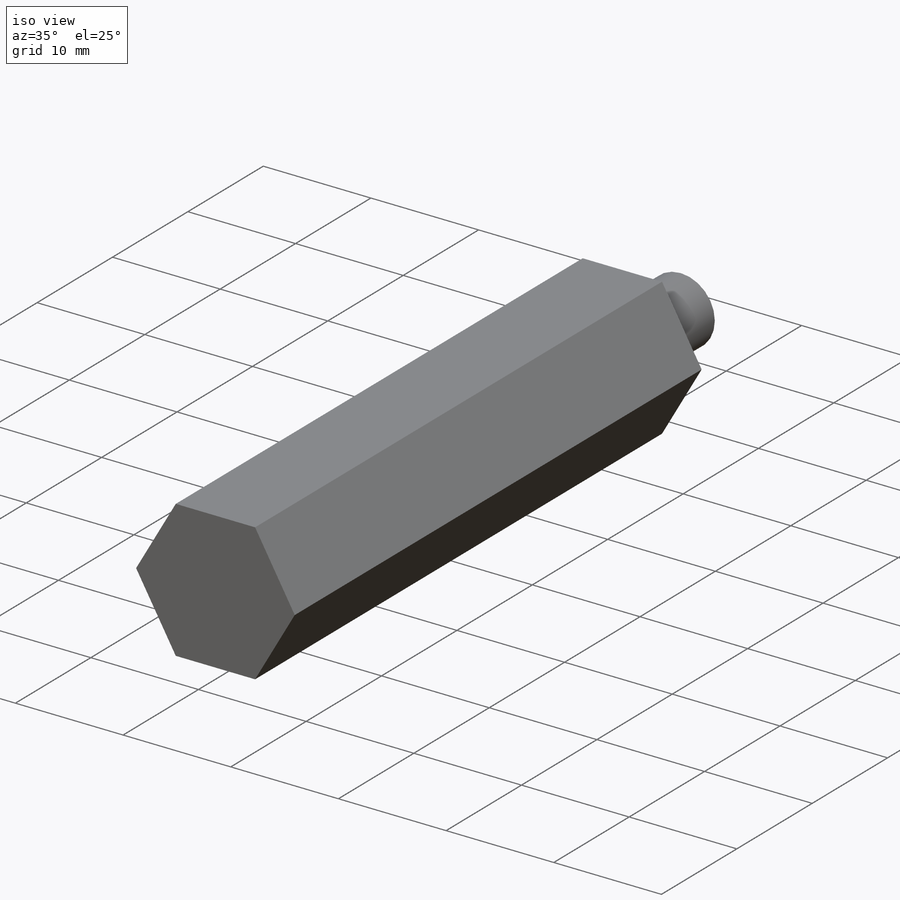
[diagram: iso view]
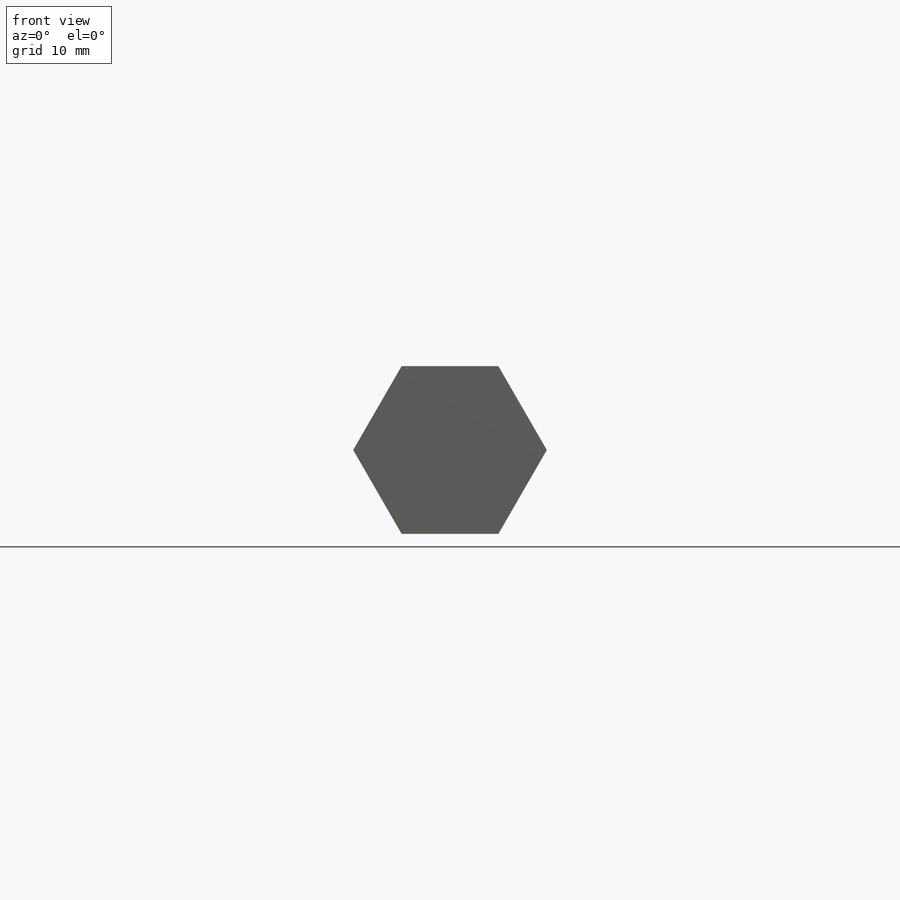
[diagram: front view]
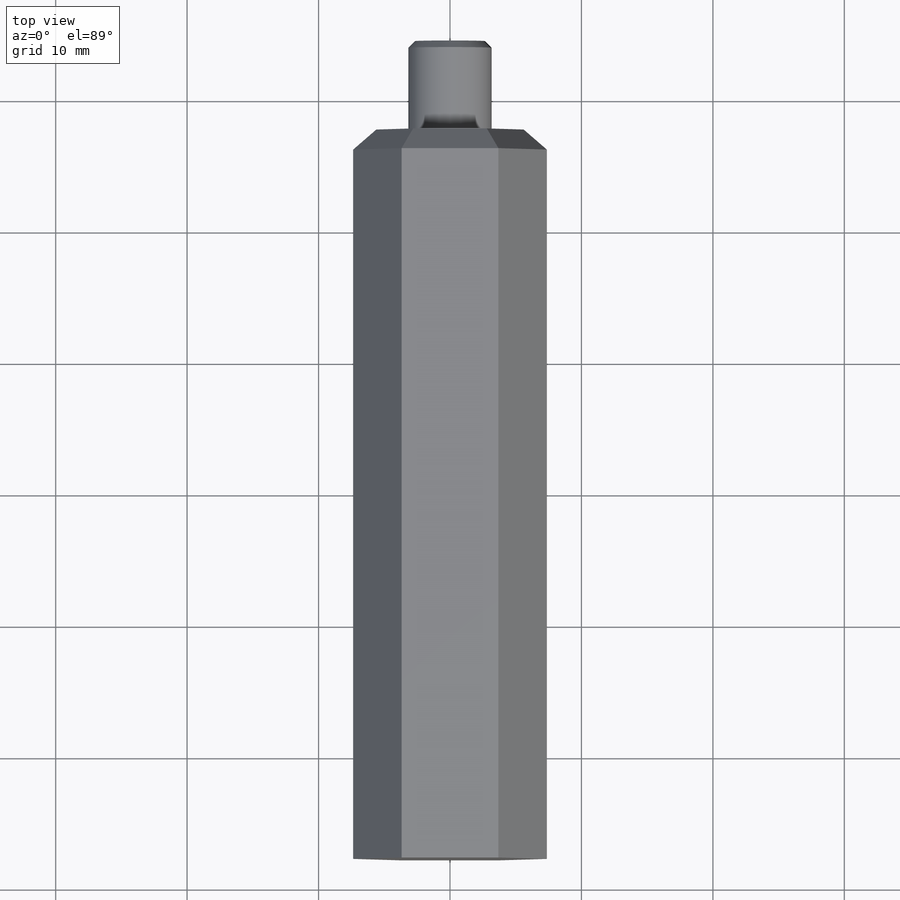
[diagram: top view]
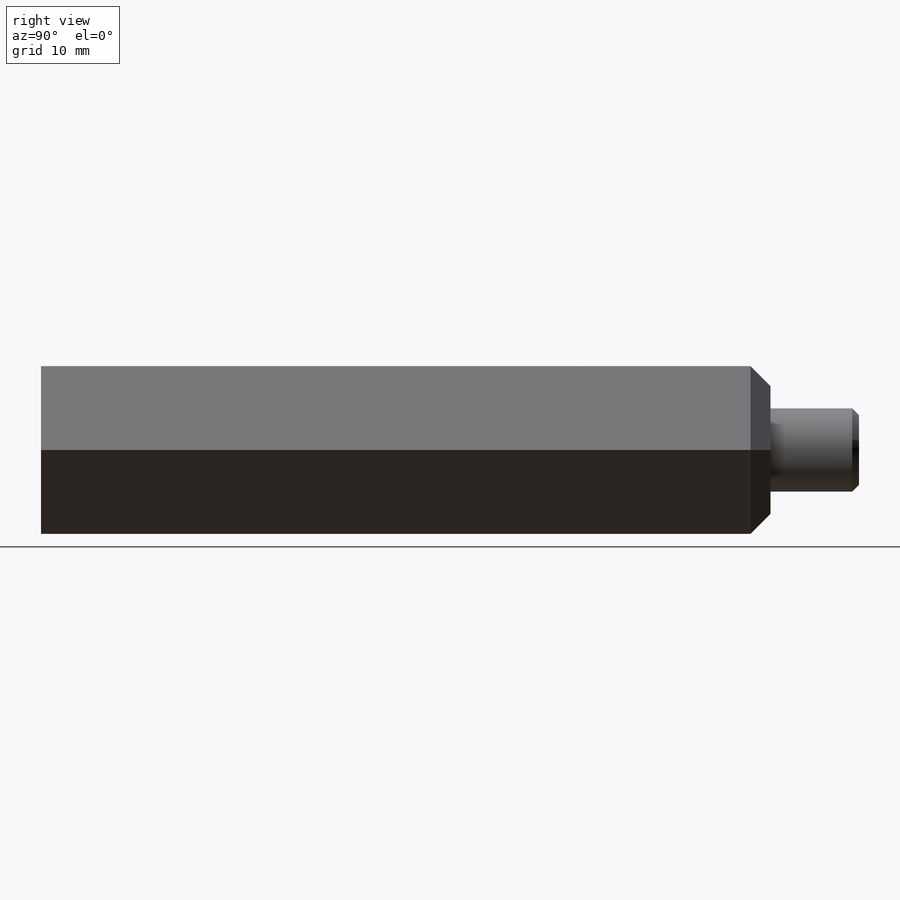
[diagram: right view]
SOLIDWORKS PART (.sldprt)
format: sldprt  version: not decoded by parser v0  size: 183,296 bytes
history: native  units: mm
features: sketch x2, chamfer x2, material x1, revolve x1, cut_extrude x1 (+13 scaffold rows collapsed)
feature tree (20):
  scaffold x13  (default folders/planes/origin — collapsed)
  material  "Alloy Steel"
  sketch  "Sketch1"  dims[c1.D1=19.1135mm c1.D2=~10.998505mm c1.D3=9.4996mm c2.D1=54.102mm c2.D2=14.732mm c2.D3=7.62mm c2.D4=6.3246mm c2.D5=55.499mm c3.D3=6.731mm c3.D1=62.23mm]
  revolve  "Revolve1"  Angle=360deg
  chamfer  "Chamfer1"  Distance=0.508014mm Angle=45deg
  sketch  "Sketch2"  dims[D1=~9.524985mm]
  cut_extrude  "Extrude1"  [1 undecoded]
  chamfer  "Chamfer2"  Distance=1.524mm Angle=45deg
decode coverage: 5 of 6 modeling features carry decoded parameters
note: ~ marks probable driven/reference dimensions
note: 1 parameter value undecoded
note: suppression state not decoded; provenance and decode notes live in map.json
